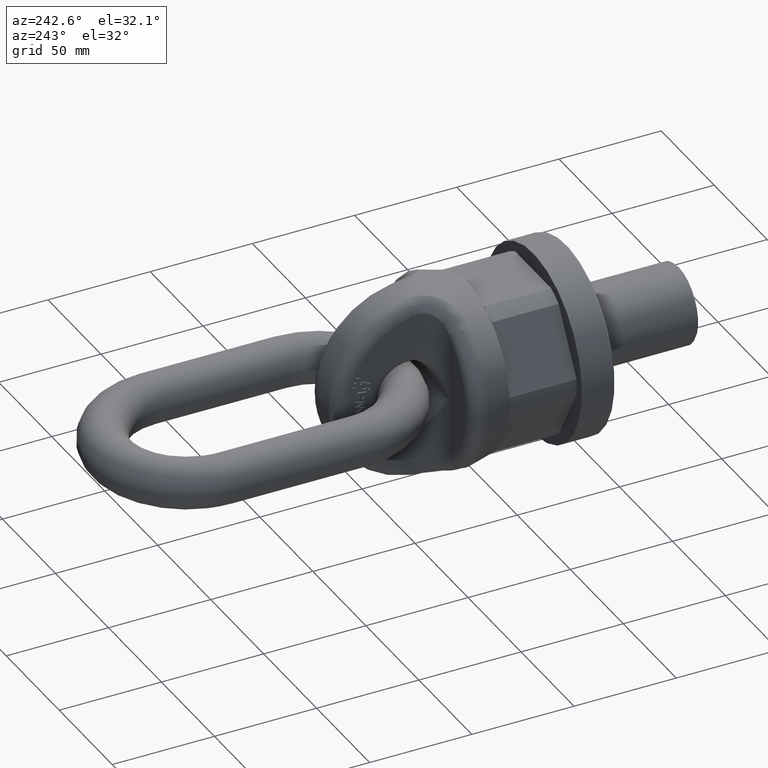
[diagram: clean part render]
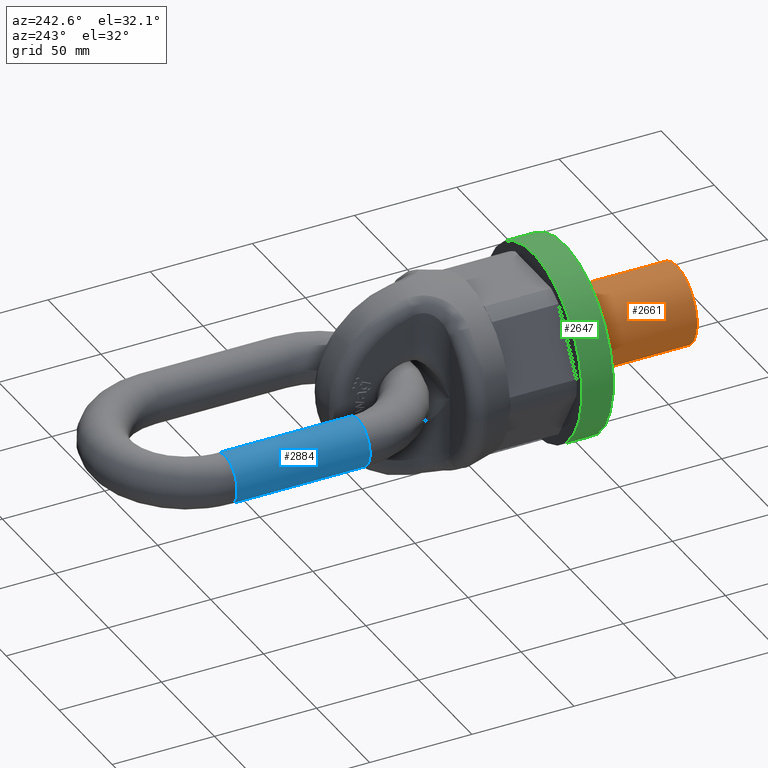
[diagram: same view with three faces highlighted in distinct colors, each labeled with its STEP entity id]
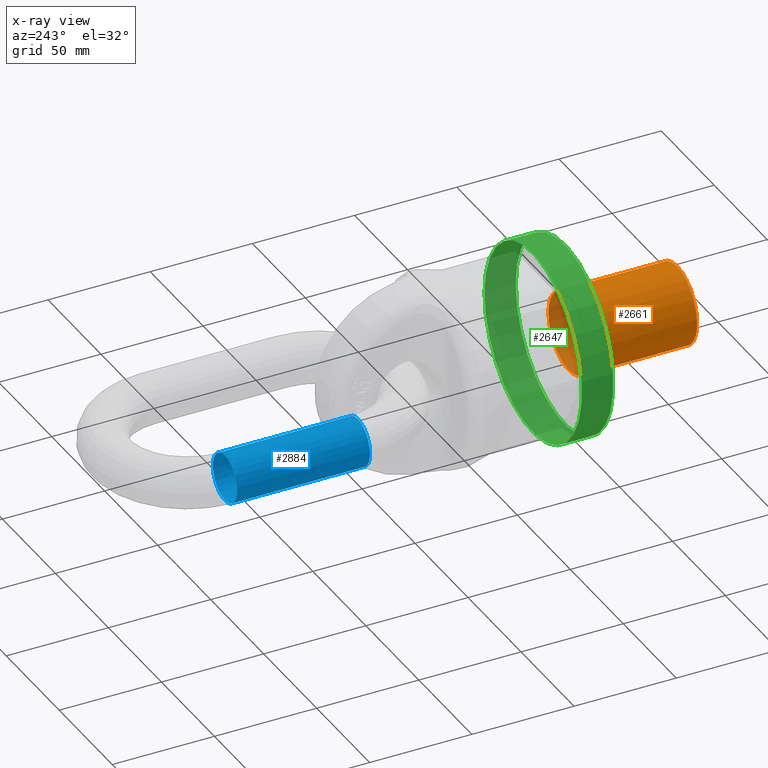
[diagram: x-ray of the same camera — body ghosted, the three highlighted faces saturated]
A machine part, auxiliary view with three faces highlighted in distinct colors.
The next image is the same camera in x-ray (body ghosted, the three faces saturated) — at least one of them is partly hidden behind the body in this view.
Their STEP definitions:

[orange] entity #2661 — the highlighted cylindrical surface (bore or boss wall) has radius 19.05 mm, axis along (0, 1, 0).
#2027=CYLINDRICAL_SURFACE('',#5638,19.05);
#2661=ADVANCED_FACE('',(#2999,#3000),#2027,.T.);
#2999=FACE_BOUND('',#3084,.T.);
#3000=FACE_BOUND('',#3085,.T.);
#3084=EDGE_LOOP('',(#3428));
#3085=EDGE_LOOP('',(#3429));
#3428=ORIENTED_EDGE('',*,*,#4981,.T.);
#3429=ORIENTED_EDGE('',*,*,#4982,.T.);
#4571=VERTEX_POINT('',#6655);
#4572=VERTEX_POINT('',#6657);
#4981=EDGE_CURVE('',#4571,#4571,#5553,.T.);
#4982=EDGE_CURVE('',#4572,#4572,#5554,.T.);
#5553=CIRCLE('',#5636,19.05);
#5554=CIRCLE('',#5637,19.05);
#5636=AXIS2_PLACEMENT_3D('',#6654,#5899,#5900);
#5637=AXIS2_PLACEMENT_3D('',#6656,#5901,#5902);
#5638=AXIS2_PLACEMENT_3D('',#6658,#5903,#5904);
#5899=DIRECTION('',(4.81111242522174E-17,-1.,0.));
#5900=DIRECTION('',(1.,4.55307998944044E-17,0.));
#5901=DIRECTION('',(0.,1.,0.));
#5902=DIRECTION('',(0.,0.,1.));
#5903=DIRECTION('',(0.,1.,0.));
#5904=DIRECTION('',(0.,0.,1.));
#6654=CARTESIAN_POINT('',(0.,-1.,0.));
#6655=CARTESIAN_POINT('',(19.05,-1.,0.));
#6656=CARTESIAN_POINT('',(0.,-54.,0.));
#6657=CARTESIAN_POINT('',(0.,-54.,19.05));
#6658=CARTESIAN_POINT('',(0.,-55.,0.));

[blue] entity #2884 — the highlighted cylindrical surface (bore or boss wall) has radius 11.5 mm, axis along (0, 1, 0).
#2039=CYLINDRICAL_SURFACE('',#5803,11.5);
#2884=ADVANCED_FACE('',(#3057,#3058),#2039,.T.);
#3057=FACE_BOUND('',#3343,.T.);
#3058=FACE_BOUND('',#3344,.T.);
#3343=EDGE_LOOP('',(#4535));
#3344=EDGE_LOOP('',(#4536));
#4535=ORIENTED_EDGE('',*,*,#5533,.T.);
#4536=ORIENTED_EDGE('',*,*,#5534,.F.);
#4937=VERTEX_POINT('',#9746);
#4938=VERTEX_POINT('',#9748);
#5533=EDGE_CURVE('',#4937,#4937,#5599,.T.);
#5534=EDGE_CURVE('',#4938,#4938,#5600,.T.);
#5599=CIRCLE('',#5801,11.5);
#5600=CIRCLE('',#5802,11.5);
#5801=AXIS2_PLACEMENT_3D('',#9745,#6553,#6554);
#5802=AXIS2_PLACEMENT_3D('',#9747,#6555,#6556);
#5803=AXIS2_PLACEMENT_3D('',#9749,#6557,#6558);
#6553=DIRECTION('',(-1.01064309961486E-15,1.,0.));
#6554=DIRECTION('',(0.,0.,-1.));
#6555=DIRECTION('',(-1.01064309961486E-15,1.,0.));
#6556=DIRECTION('',(0.,0.,-1.));
#6557=DIRECTION('',(2.18628534080031E-16,1.,0.));
#6558=DIRECTION('',(-1.,0.,0.));
#9745=CARTESIAN_POINT('',(-36.5,121.,0.));
#9746=CARTESIAN_POINT('',(-36.5,121.,-11.5));
#9747=CARTESIAN_POINT('',(-36.4999999999999,186.,0.));
#9748=CARTESIAN_POINT('',(-36.4999999999999,186.,-11.5));
#9749=CARTESIAN_POINT('',(-36.5,121.,0.));

[green] entity #2647 — the highlighted cylindrical surface (bore or boss wall) has radius 46 mm, axis along (0, -1, 0).
#2020=CYLINDRICAL_SURFACE('',#5616,46.);
#2647=ADVANCED_FACE('',(#2997,#2998),#2020,.T.);
#2997=FACE_BOUND('',#3069,.T.);
#2998=FACE_BOUND('',#3070,.T.);
#3069=EDGE_LOOP('',(#3366));
#3070=EDGE_LOOP('',(#3367));
#3366=ORIENTED_EDGE('',*,*,#4956,.T.);
#3367=ORIENTED_EDGE('',*,*,#4943,.T.);
#4545=VERTEX_POINT('',#6576);
#4558=VERTEX_POINT('',#6603);
#4943=EDGE_CURVE('',#4545,#4545,#5539,.T.);
#4956=EDGE_CURVE('',#4558,#4558,#5546,.T.);
#5539=CIRCLE('',#5607,46.);
#5546=CIRCLE('',#5615,46.);
#5607=AXIS2_PLACEMENT_3D('',#6575,#5817,#5818);
#5615=AXIS2_PLACEMENT_3D('',#6602,#5839,#5840);
#5616=AXIS2_PLACEMENT_3D('',#6604,#5841,#5842);
#5817=DIRECTION('',(4.81111242522174E-17,-1.,0.));
#5818=DIRECTION('',(1.,7.54227598250786E-17,0.));
#5839=DIRECTION('',(-4.81111242522174E-17,1.,0.));
#5840=DIRECTION('',(1.,4.71392248906741E-17,0.));
#5841=DIRECTION('',(4.81111242522174E-17,-1.,0.));
#5842=DIRECTION('',(1.,7.54227598250786E-17,0.));
#6575=CARTESIAN_POINT('',(-7.85815029452885E-16,16.3333333333333,0.));
#6576=CARTESIAN_POINT('',(46.,16.3333333333333,0.));
#6602=CARTESIAN_POINT('',(-4.81111242522174E-17,0.999999999999999,0.));
#6603=CARTESIAN_POINT('',(46.,1.,0.));
#6604=CARTESIAN_POINT('',(-7.85815029452884E-16,16.3333333333333,0.));